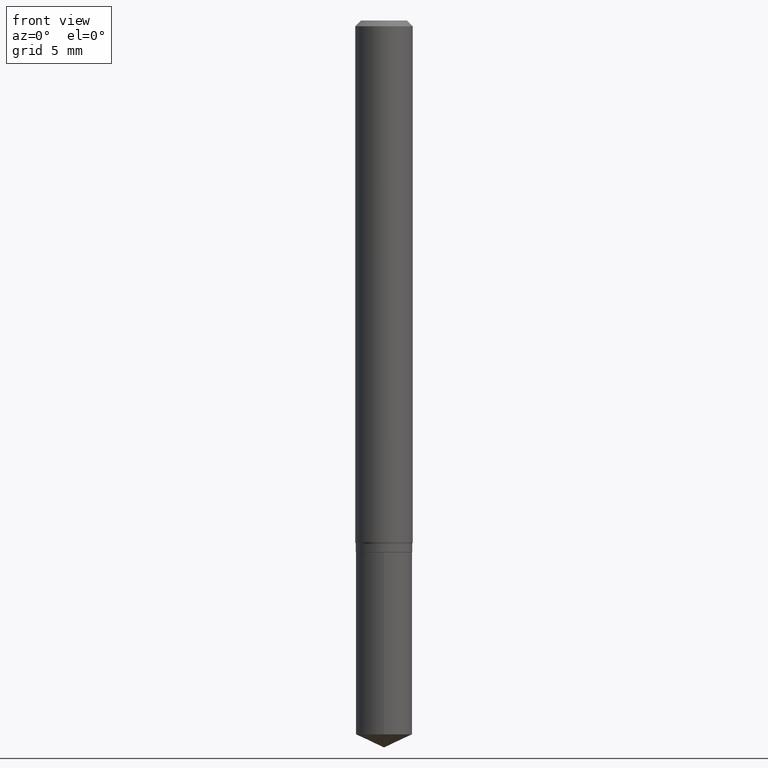
[diagram: clean part render]
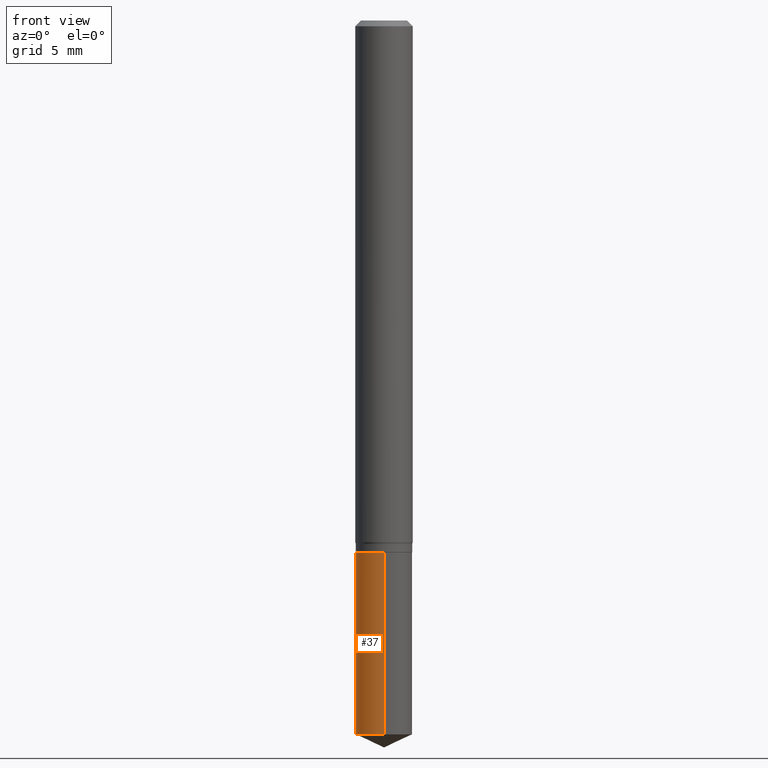
[diagram: same view with one face highlighted and labeled with its STEP entity id]
A machine part, front view. The second image highlights one B-rep face of the part: STEP entity #37.
In plain terms, the highlighted cylindrical surface (edge-blend (fillet) strip) has radius 1.4745 mm, axis along (-0, 0, 1).
Its self-contained STEP definition (entity closure, byte-faithful):
#13 = EDGE_CURVE ( 'NONE', #183, #353, #173, .T. ) ;
#20 = CARTESIAN_POINT ( 'NONE',  ( 3.592427717684202887E-29, -5.129153021169098548E-15, -1.469030840444102815 ) ) ;
#37 = ADVANCED_FACE ( 'NONE', ( #107 ), #409, .T. ) ;
#38 = DIRECTION ( 'NONE',  ( -6.982962677686265922E-15, -1.000000000000000000, 2.353012914439503496E-15 ) ) ;
#82 = CIRCLE ( 'NONE', #90, 0.05804999999999999744 ) ;
#90 = AXIS2_PLACEMENT_3D ( 'NONE', #408, #403, #38 ) ;
#104 = VERTEX_POINT ( 'NONE', #257 ) ;
#106 = LINE ( 'NONE', #298, #306 ) ;
#107 = FACE_OUTER_BOUND ( 'NONE', #171, .T. ) ;
#110 = DIRECTION ( 'NONE',  ( -2.445358326776455510E-29, 3.491639551644474585E-15, 1.000000000000000000 ) ) ;
#115 = DIRECTION ( 'NONE',  ( -6.982962677686265922E-15, -1.000000000000000000, 2.353012914439503496E-15 ) ) ;
#122 = VECTOR ( 'NONE', #445, 39.37007874015748143 ) ;
#127 = CARTESIAN_POINT ( 'NONE',  ( 4.124700581087740328E-16, 0.05804999999999487653, -1.469030840444103037 ) ) ;
#141 = AXIS2_PLACEMENT_3D ( 'NONE', #148, #110, #115 ) ;
#148 = CARTESIAN_POINT ( 'NONE',  ( 2.676565608369631794E-29, -3.821426325363822773E-15, -1.094499999999999806 ) ) ;
#157 = CIRCLE ( 'NONE', #237, 0.05804999999999999744 ) ;
#167 = DIRECTION ( 'NONE',  ( -2.445358326776455510E-29, 3.491639551644474585E-15, 1.000000000000000000 ) ) ;
#171 = EDGE_LOOP ( 'NONE', ( #259, #193, #481, #411 ) ) ;
#173 = LINE ( 'NONE', #485, #122 ) ;
#183 = VERTEX_POINT ( 'NONE', #127 ) ;
#193 = ORIENTED_EDGE ( 'NONE', *, *, #288, .T. ) ;
#237 = AXIS2_PLACEMENT_3D ( 'NONE', #20, #167, #476 ) ;
#241 = CARTESIAN_POINT ( 'NONE',  ( 4.124700581087739835E-16, 0.05804999999999616023, -1.094500000000000028 ) ) ;
#257 = CARTESIAN_POINT ( 'NONE',  ( -4.053609834396517801E-16, -0.05805000000000513222, -1.469030840444102592 ) ) ;
#259 = ORIENTED_EDGE ( 'NONE', *, *, #13, .F. ) ;
#278 = VERTEX_POINT ( 'NONE', #322 ) ;
#288 = EDGE_CURVE ( 'NONE', #183, #104, #157, .T. ) ;
#298 = CARTESIAN_POINT ( 'NONE',  ( -4.053609834396609506E-16, -0.05805000000000382077, -1.094499999999999806 ) ) ;
#306 = VECTOR ( 'NONE', #484, 39.37007874015748143 ) ;
#322 = CARTESIAN_POINT ( 'NONE',  ( -4.053609834396609506E-16, -0.05805000000000382077, -1.094499999999999806 ) ) ;
#353 = VERTEX_POINT ( 'NONE', #241 ) ;
#403 = DIRECTION ( 'NONE',  ( -2.445358326776455510E-29, 3.491639551644474585E-15, 1.000000000000000000 ) ) ;
#408 = CARTESIAN_POINT ( 'NONE',  ( 2.676565608369631794E-29, -3.821426325363822773E-15, -1.094499999999999806 ) ) ;
#409 = CYLINDRICAL_SURFACE ( 'NONE', #141, 0.05804999999999999744 ) ;
#410 = EDGE_CURVE ( 'NONE', #353, #278, #82, .T. ) ;
#411 = ORIENTED_EDGE ( 'NONE', *, *, #410, .F. ) ;
#445 = DIRECTION ( 'NONE',  ( -2.445358326776455790E-29, 3.491639551644474585E-15, 1.000000000000000000 ) ) ;
#476 = DIRECTION ( 'NONE',  ( -6.982962677686265922E-15, -1.000000000000000000, 4.706025828879006993E-15 ) ) ;
#481 = ORIENTED_EDGE ( 'NONE', *, *, #489, .T. ) ;
#484 = DIRECTION ( 'NONE',  ( -2.445358326776455790E-29, 3.491639551644474585E-15, 1.000000000000000000 ) ) ;
#485 = CARTESIAN_POINT ( 'NONE',  ( 4.124700581087648130E-16, 0.05804999999999617410, -1.094500000000000028 ) ) ;
#489 = EDGE_CURVE ( 'NONE', #104, #278, #106, .T. ) ;